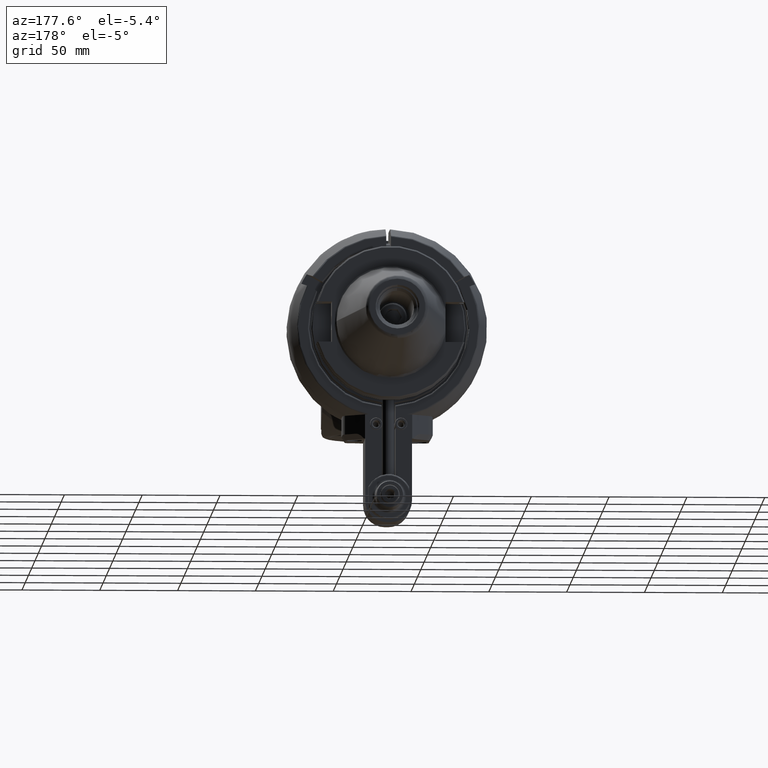
[diagram: clean part render]
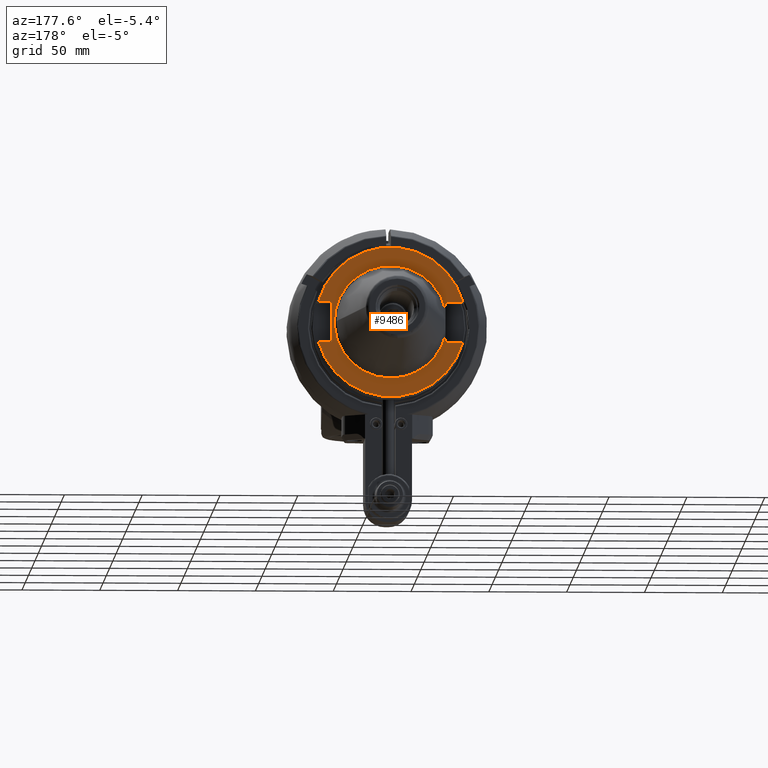
[diagram: same view with one face highlighted and labeled with its STEP entity id]
A machine part, auxiliary view. The second image highlights one B-rep face of the part: STEP entity #9486.
In plain terms, the highlighted planar face has unit normal (0, -1, 0).
Its self-contained STEP definition (entity closure, byte-faithful):
#693=CIRCLE('',#10209,48.225);
#694=CIRCLE('',#10210,48.225);
#695=CIRCLE('',#10211,36.225);
#696=CIRCLE('',#10212,36.225);
#1232=FACE_OUTER_BOUND('',#1832,.T.);
#1832=EDGE_LOOP('',(#6709,#6710,#6711,#6712,#6713,#6714,#6715,#6716,#6717,
#6718,#6719));
#2674=LINE('',#14888,#3287);
#2677=LINE('',#14906,#3290);
#2689=LINE('',#14951,#3302);
#2690=LINE('',#14956,#3303);
#2691=LINE('',#14959,#3304);
#2692=LINE('',#14963,#3305);
#2693=LINE('',#14965,#3306);
#3287=VECTOR('',#11550,8.733604975397);
#3290=VECTOR('',#11565,11.14660497539);
#3302=VECTOR('',#11611,25.908);
#3303=VECTOR('',#11616,4.846164962211);
#3304=VECTOR('',#11619,8.733604975394);
#3305=VECTOR('',#11622,11.14660497539);
#3306=VECTOR('',#11623,4.846164962211);
#3955=VERTEX_POINT('',#14885);
#3956=VERTEX_POINT('',#14887);
#3961=VERTEX_POINT('',#14903);
#3962=VERTEX_POINT('',#14905);
#3975=VERTEX_POINT('',#14949);
#3977=VERTEX_POINT('',#14955);
#3978=VERTEX_POINT('',#14958);
#3979=VERTEX_POINT('',#14960);
#3980=VERTEX_POINT('',#14962);
#3981=VERTEX_POINT('',#14964);
#3982=VERTEX_POINT('',#14966);
#4988=EDGE_CURVE('',#3955,#3956,#2674,.T.);
#4996=EDGE_CURVE('',#3961,#3962,#2677,.T.);
#5018=EDGE_CURVE('',#3955,#3975,#2689,.T.);
#5020=EDGE_CURVE('',#3977,#3962,#2690,.T.);
#5021=EDGE_CURVE('',#3961,#3956,#693,.T.);
#5022=EDGE_CURVE('',#3978,#3975,#2691,.T.);
#5023=EDGE_CURVE('',#3978,#3979,#694,.T.);
#5024=EDGE_CURVE('',#3980,#3979,#2692,.T.);
#5025=EDGE_CURVE('',#3980,#3981,#2693,.T.);
#5026=EDGE_CURVE('',#3981,#3982,#695,.T.);
#5027=EDGE_CURVE('',#3982,#3977,#696,.T.);
#6709=ORIENTED_EDGE('',*,*,#5020,.T.);
#6710=ORIENTED_EDGE('',*,*,#4996,.F.);
#6711=ORIENTED_EDGE('',*,*,#5021,.T.);
#6712=ORIENTED_EDGE('',*,*,#4988,.F.);
#6713=ORIENTED_EDGE('',*,*,#5018,.T.);
#6714=ORIENTED_EDGE('',*,*,#5022,.F.);
#6715=ORIENTED_EDGE('',*,*,#5023,.T.);
#6716=ORIENTED_EDGE('',*,*,#5024,.F.);
#6717=ORIENTED_EDGE('',*,*,#5025,.T.);
#6718=ORIENTED_EDGE('',*,*,#5026,.T.);
#6719=ORIENTED_EDGE('',*,*,#5027,.T.);
#9201=PLANE('',#10208);
#9486=ADVANCED_FACE('',(#1232),#9201,.F.);
#10208=AXIS2_PLACEMENT_3D('',#14954,#11614,#11615);
#10209=AXIS2_PLACEMENT_3D('',#14957,#11617,#11618);
#10210=AXIS2_PLACEMENT_3D('',#14961,#11620,#11621);
#10211=AXIS2_PLACEMENT_3D('',#14967,#11624,#11625);
#10212=AXIS2_PLACEMENT_3D('',#14968,#11626,#11627);
#11550=DIRECTION('',(1.,0.,-7.973017820322E-14));
#11565=DIRECTION('',(1.,0.,0.));
#11611=DIRECTION('',(0.,0.,-1.));
#11614=DIRECTION('center_axis',(0.,-1.,0.));
#11615=DIRECTION('ref_axis',(0.,0.,1.));
#11616=DIRECTION('',(0.,0.,1.));
#11617=DIRECTION('center_axis',(0.,1.,0.));
#11618=DIRECTION('ref_axis',(-0.963247381553017,0.,0.268615863141505));
#11619=DIRECTION('',(-1.,0.,0.));
#11620=DIRECTION('center_axis',(0.,1.,0.));
#11621=DIRECTION('ref_axis',(0.963247381553017,0.,-0.268615863141505));
#11622=DIRECTION('',(-1.,0.,0.));
#11623=DIRECTION('',(0.,0.,1.));
#11624=DIRECTION('center_axis',(0.,-1.,0.));
#11625=DIRECTION('ref_axis',(0.,0.,1.));
#11626=DIRECTION('center_axis',(0.,-1.,0.));
#11627=DIRECTION('ref_axis',(0.,0.,1.));
#14885=CARTESIAN_POINT('',(37.719,73.82499976923,12.954));
#14887=CARTESIAN_POINT('',(46.4526049754,73.82499976923,12.954));
#14888=CARTESIAN_POINT('',(37.719,73.82499976923,12.954));
#14903=CARTESIAN_POINT('',(-46.45260497539,73.82499976923,12.954));
#14905=CARTESIAN_POINT('',(-35.306,73.82499976923,12.954));
#14906=CARTESIAN_POINT('',(-46.45260497539,73.82499976923,12.954));
#14949=CARTESIAN_POINT('',(37.719,73.82499976923,-12.954));
#14951=CARTESIAN_POINT('',(37.719,73.82499976923,12.954));
#14954=CARTESIAN_POINT('Origin',(0.,73.82499976923,42.625));
#14955=CARTESIAN_POINT('',(-35.306,73.82499976923,8.107835037789));
#14956=CARTESIAN_POINT('',(-35.306,73.82499976923,8.107835037789));
#14957=CARTESIAN_POINT('Origin',(0.,73.82499976923,0.));
#14958=CARTESIAN_POINT('',(46.45260497539,73.82499976923,-12.954));
#14959=CARTESIAN_POINT('',(46.45260497539,73.82499976923,-12.954));
#14960=CARTESIAN_POINT('',(-46.45260497539,73.82499976923,-12.954));
#14961=CARTESIAN_POINT('Origin',(0.,73.82499976923,0.));
#14962=CARTESIAN_POINT('',(-35.306,73.82499976923,-12.954));
#14963=CARTESIAN_POINT('',(-35.306,73.82499976923,-12.954));
#14964=CARTESIAN_POINT('',(-35.306,73.82499976923,-8.107835037789));
#14965=CARTESIAN_POINT('',(-35.306,73.82499976923,-12.954));
#14966=CARTESIAN_POINT('',(4.43628302991129E-15,73.82499976923,-36.225));
#14967=CARTESIAN_POINT('Origin',(0.,73.82499976923,0.));
#14968=CARTESIAN_POINT('Origin',(0.,73.82499976923,0.));